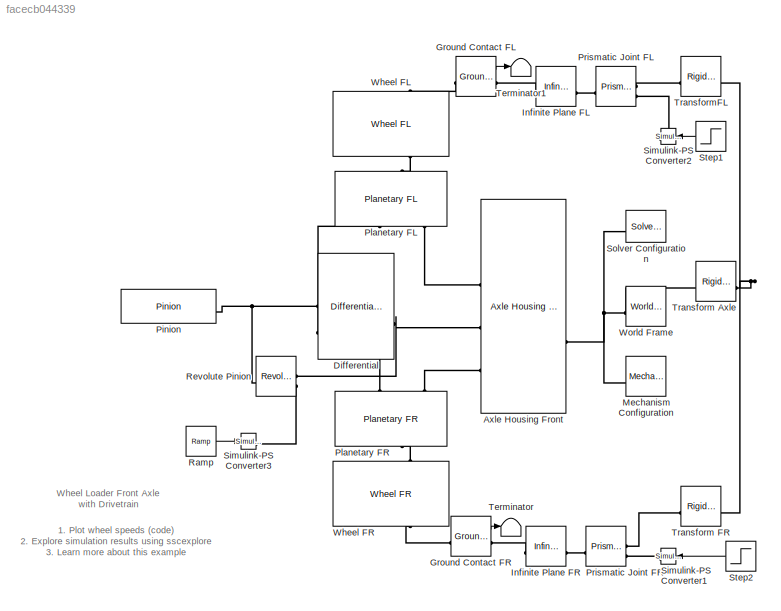
MODEL slx_facecb044339
KIND model
CONFIG AbsTol = 1e-3
CONFIG EnableMultiTasking = on
CONFIG MaxStep = 0.01
CONFIG SolverName = ode23t
CONFIG StopTime = 10
BLOCK [Reference] Axle Housing Front  REF=sm_wheel_loader_lib/Wheel Loader Vehicle/Driveline/Axle Housing  (lib defined in slx_2f13f0afc9e9, slx_78fdec152d5c)
Front
  SourceBlock = sm_wheel_loader_lib/Wheel Loader Vehicle/Driveline/Axle Housing\nFront
  Tag = 26328293-4415-CB41-A9FB-B9AA4EE664BB
BLOCK [Reference] Differential  REF=sm_wheel_loader_lib/Wheel Loader Vehicle/Driveline/Driveline/Driveline 3D/Differential F  (lib defined in slx_2f13f0afc9e9, slx_78fdec152d5c)
  NameLocation = top
  SourceBlock = sm_wheel_loader_lib/Wheel Loader Vehicle/Driveline/Driveline/Driveline 3D/Differential F
BLOCK [Reference] Ground Contact FL  REF=wheel_loader_contact_lib/Ground  (lib defined in slx_c9c847b5a653, slx_ee41a34c1fd8)
Contact Tire
  SourceBlock = wheel_loader_contact_lib/Ground\nContact Tire
BLOCK [Reference] Ground Contact FR  REF=wheel_loader_contact_lib/Ground  (lib defined in slx_c9c847b5a653, slx_ee41a34c1fd8)
Contact Tire
  SourceBlock = wheel_loader_contact_lib/Ground\nContact Tire
BLOCK [Reference] Infinite Plane FL  REF=sm_lib/Curves and Surfaces/Infinite Plane
  SourceBlock = sm_lib/Curves and Surfaces/Infinite Plane
  SourceType = Infinite Plane
BLOCK [Reference] Infinite Plane FR  REF=sm_lib/Curves and Surfaces/Infinite Plane
  SourceBlock = sm_lib/Curves and Surfaces/Infinite Plane
  SourceType = Infinite Plane
BLOCK [Reference] Mechanism Configuration  REF=sm_lib/Utilities/Mechanism
Configuration
  SourceBlock = sm_lib/Utilities/Mechanism\nConfiguration
  SourceType = Mechanism\nConfiguration
BLOCK [Reference] Pinion  REF=sm_wheel_loader_lib/Wheel Loader Vehicle/Driveline/Driveline/Driveline 3D/Driveshaft  (lib defined in slx_2f13f0afc9e9, slx_78fdec152d5c)
Front/Pinion
  SourceBlock = sm_wheel_loader_lib/Wheel Loader Vehicle/Driveline/Driveline/Driveline 3D/Driveshaft\nFront/Pinion
  Tag = 545F0601-AC89-E141-97FA-F657C359B94C
BLOCK [Reference] Planetary FL  REF=sm_wheel_loader_lib/Wheel Loader Vehicle/Driveline/Driveline/Driveline 3D/Planetary FL  (lib defined in slx_2f13f0afc9e9, slx_78fdec152d5c)
  NameLocation = top
  SourceBlock = sm_wheel_loader_lib/Wheel Loader Vehicle/Driveline/Driveline/Driveline 3D/Planetary FL
BLOCK [Reference] Planetary FR  REF=sm_wheel_loader_lib/Wheel Loader Vehicle/Driveline/Driveline/Driveline 3D/Planetary FR  (lib defined in slx_2f13f0afc9e9, slx_78fdec152d5c)
  SourceBlock = sm_wheel_loader_lib/Wheel Loader Vehicle/Driveline/Driveline/Driveline 3D/Planetary FR
BLOCK [Reference] Prismatic Joint FL  REF=sm_lib/Joints/Prismatic
Joint
  SourceBlock = sm_lib/Joints/Prismatic\nJoint
  SourceType = Prismatic\nJoint
BLOCK [Reference] Prismatic Joint FR  REF=sm_lib/Joints/Prismatic
Joint
  SourceBlock = sm_lib/Joints/Prismatic\nJoint
  SourceType = Prismatic\nJoint
BLOCK [Reference] Ramp  REF=simulink/Sources/Ramp
  NameLocation = top
  SourceBlock = simulink/Sources/Ramp
  SourceType = Ramp
BLOCK [Reference] Revolute Pinion  REF=sm_lib/Joints/Revolute Joint
  SourceBlock = sm_lib/Joints/Revolute Joint
  SourceType = Revolute Joint
BLOCK [Reference] Simulink-PS Converter1  REF=nesl_utility/Simulink-PS
Converter
  SourceBlock = nesl_utility/Simulink-PS\nConverter
  SourceType = Simulink-PS\nConverter
BLOCK [Reference] Simulink-PS Converter2  REF=nesl_utility/Simulink-PS
Converter
  SourceBlock = nesl_utility/Simulink-PS\nConverter
  SourceType = Simulink-PS\nConverter
BLOCK [Reference] Simulink-PS Converter3  REF=nesl_utility/Simulink-PS
Converter
  NameLocation = top
  SourceBlock = nesl_utility/Simulink-PS\nConverter
  SourceType = Simulink-PS\nConverter
BLOCK [Reference] Solver Configuration  REF=nesl_utility/Solver
Configuration
  SourceBlock = nesl_utility/Solver\nConfiguration
  SourceType = Solver\nConfiguration
BLOCK [Step] Step1
  FinalValue = 0.03
  SampleTime = 0
  Time = 5
BLOCK [Step] Step2
  FinalValue = 0.03*0
  SampleTime = 0
  Time = 8
BLOCK [Terminator] Terminator
BLOCK [Terminator] Terminator1
BLOCK [Reference] Transform Axle  REF=sm_lib/Frames and
Transforms/Rigid
Transform
  SourceBlock = sm_lib/Frames and\nTransforms/Rigid\nTransform
  SourceType = Rigid\nTransform
BLOCK [Reference] Transform FR  REF=sm_lib/Frames and
Transforms/Rigid
Transform
  NameLocation = top
  SourceBlock = sm_lib/Frames and\nTransforms/Rigid\nTransform
  SourceType = Rigid\nTransform
BLOCK [Reference] TransformFL  REF=sm_lib/Frames and
Transforms/Rigid
Transform
  SourceBlock = sm_lib/Frames and\nTransforms/Rigid\nTransform
  SourceType = Rigid\nTransform
BLOCK [Reference] Wheel FL  REF=sm_wheel_loader_lib/Wheel Loader Vehicle/Driveline/Wheel FL  (lib defined in slx_2f13f0afc9e9, slx_78fdec152d5c)
  NameLocation = left
  SourceBlock = sm_wheel_loader_lib/Wheel Loader Vehicle/Driveline/Wheel FL
BLOCK [Reference] Wheel FR  REF=sm_wheel_loader_lib/Wheel Loader Vehicle/Driveline/Wheel FR  (lib defined in slx_2f13f0afc9e9, slx_78fdec152d5c)
  NameLocation = left
  SourceBlock = sm_wheel_loader_lib/Wheel Loader Vehicle/Driveline/Wheel FR
BLOCK [Reference] World Frame  REF=sm_lib/Frames and
Transforms/World Frame
  SourceBlock = sm_lib/Frames and\nTransforms/World Frame
  SourceType = World Frame
ANNOTATION (root): 1. Plot wheel speeds ( code ) 2. Explore simulation results using sscexplore 3. Learn more about this example
ANNOTATION (root): Wheel Loader Front Axle with Drivetrain
LINE Ground Contact FL:1 -> Terminator1:1
LINE Ground Contact FR:1 -> Terminator:1
LINE Ramp:1 -> Simulink-PS Converter3:1
LINE Step1:1 -> Simulink-PS Converter2:1
LINE Step2:1 -> Simulink-PS Converter1:1
PLINE Axle Housing Front:LConn1 -- Planetary FL:RConn3
PLINE Axle Housing Front:LConn2 -- Revolute Pinion:LConn1
PLINE Axle Housing Front:LConn3 -- Planetary FR:LConn3
PNET net1: Axle Housing Front:RConn1 -- Mechanism Configuration:RConn1 -- Solver Configuration:RConn1 -- Transform Axle:LConn1 -- World Frame:RConn1
PNET net2: Differential:LConn1 -- Pinion:LConn1 -- Revolute Pinion:RConn1
PLINE Differential:LConn2 -- Planetary FL:RConn1
PLINE Differential:RConn1 -- Planetary FR:LConn1
PLINE Ground Contact FL:LConn1 -- Wheel FL:RConn1
PLINE Ground Contact FL:RConn1 -- Infinite Plane FL:RConn1
PLINE Ground Contact FR:LConn1 -- Wheel FR:RConn1
PLINE Ground Contact FR:RConn1 -- Infinite Plane FR:RConn1
PLINE Infinite Plane FL:LConn1 -- Prismatic Joint FL:RConn1
PLINE Infinite Plane FR:LConn1 -- Prismatic Joint FR:RConn1
PLINE Planetary FL:LConn2 -- Wheel FL:LConn1
PLINE Planetary FR:RConn2 -- Wheel FR:LConn1
PLINE Prismatic Joint FL:LConn1 -- TransformFL:RConn1
PLINE Prismatic Joint FL:LConn2 -- Simulink-PS Converter2:RConn1
PLINE Prismatic Joint FR:LConn1 -- Transform FR:RConn1
PLINE Prismatic Joint FR:LConn2 -- Simulink-PS Converter1:RConn1
PLINE Revolute Pinion:LConn2 -- Simulink-PS Converter3:RConn1
PNET net3: Transform Axle:RConn1 -- Transform FR:LConn1 -- TransformFL:LConn1
note: PNET lines group multi-terminal physical nets as a canonical sorted terminal list (undirected conserving connections); 2-terminal nets keep the pairwise PLINE form
